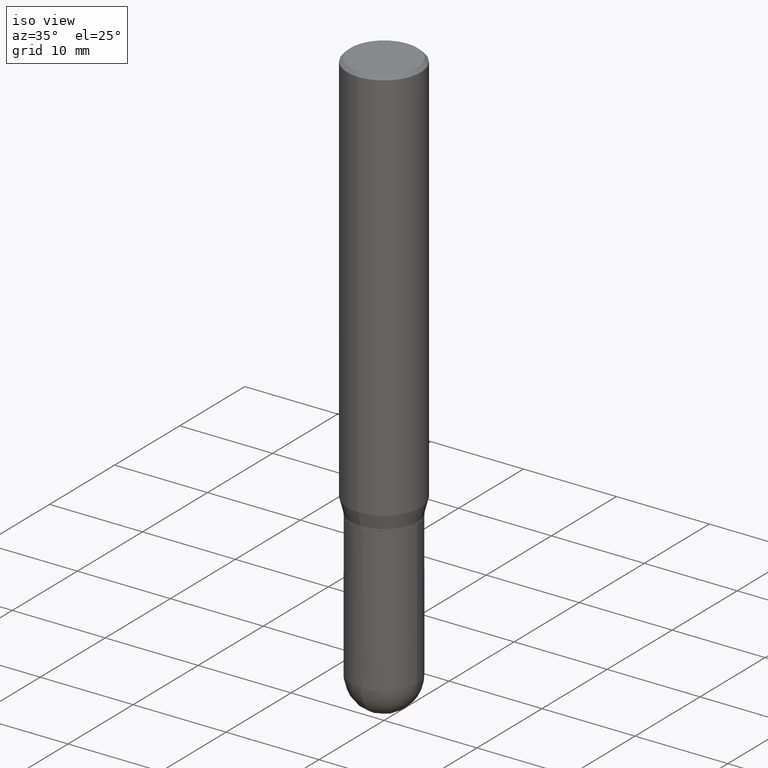
[diagram: clean part render]
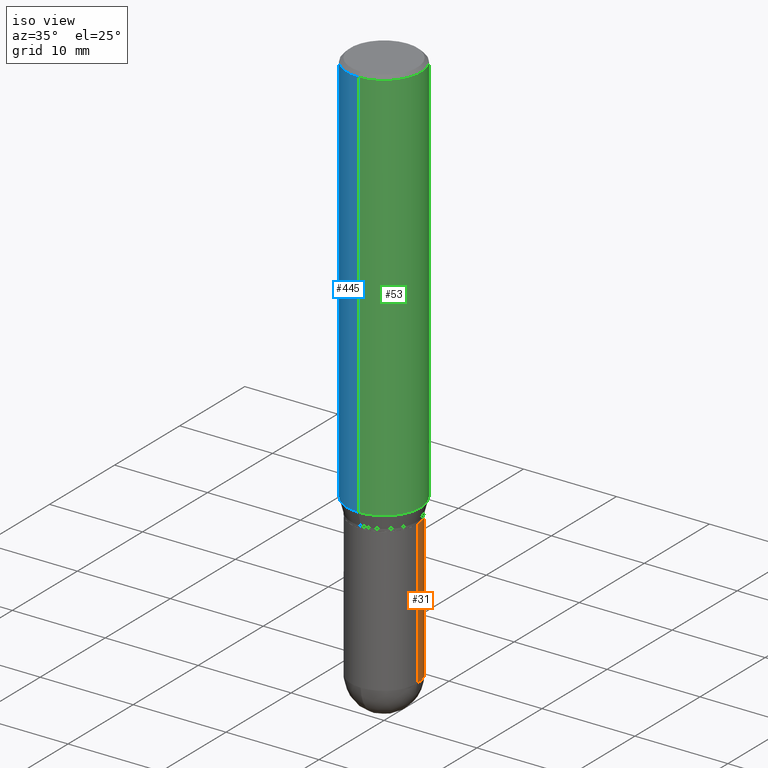
[diagram: same view with three faces highlighted in distinct colors, each labeled with its STEP entity id]
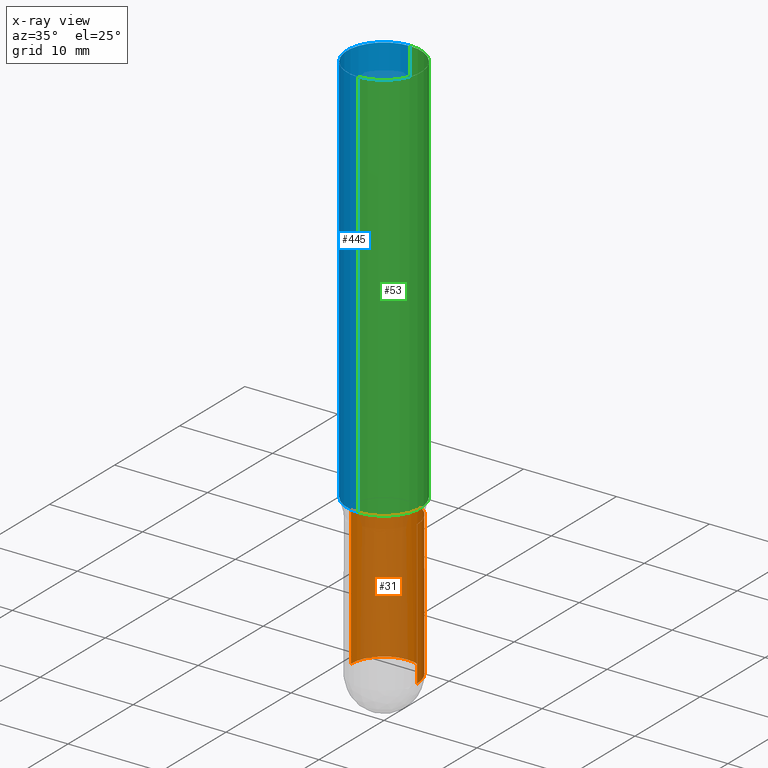
[diagram: x-ray of the same camera — body ghosted, the three highlighted faces saturated]
A machine part, iso view with three faces highlighted in distinct colors.
The next image is the same camera in x-ray (body ghosted, the three faces saturated) — at least one of them is partly hidden behind the body in this view.
Their STEP definitions:

[orange] entity #31 — the highlighted cylindrical surface (partial cylindrical patch) has radius 3.5712 mm, axis along (-0, 0, 1).
#3 = AXIS2_PLACEMENT_3D ( 'NONE', #416, #60, #380 ) ;
#5 = EDGE_CURVE ( 'NONE', #476, #144, #56, .T. ) ;
#30 = ORIENTED_EDGE ( 'NONE', *, *, #426, .T. ) ;
#31 = ADVANCED_FACE ( 'NONE', ( #459 ), #183, .T. ) ;
#45 = ORIENTED_EDGE ( 'NONE', *, *, #5, .T. ) ;
#56 = CIRCLE ( 'NONE', #351, 0.1406000000000000305 ) ;
#60 = DIRECTION ( 'NONE',  ( -2.445468806185136597E-29, 3.491481338843145583E-15, 1.000000000000000000 ) ) ;
#63 = VERTEX_POINT ( 'NONE', #70 ) ;
#70 = CARTESIAN_POINT ( 'NONE',  ( 0.1406000000000000028, -7.091896895458194566E-15, -1.750000000000000222 ) ) ;
#85 = EDGE_CURVE ( 'NONE', #208, #63, #298, .T. ) ;
#112 = DIRECTION ( 'NONE',  ( 1.000000000000000000, -6.982962677686270655E-15, 0.000000000000000000 ) ) ;
#142 = DIRECTION ( 'NONE',  ( 1.000000000000000000, -6.982962677686268288E-15, 4.876176775795936353E-29 ) ) ;
#144 = VERTEX_POINT ( 'NONE', #398 ) ;
#168 = CARTESIAN_POINT ( 'NONE',  ( 0.1406000000000000583, -8.155751259403701439E-15, -2.359399999999999942 ) ) ;
#170 = DIRECTION ( 'NONE',  ( 1.000000000000000000, -6.982962677686265133E-15, 0.000000000000000000 ) ) ;
#175 = LINE ( 'NONE', #460, #391 ) ;
#183 = CYLINDRICAL_SURFACE ( 'NONE', #421, 0.1406000000000000028 ) ;
#187 = ORIENTED_EDGE ( 'NONE', *, *, #358, .F. ) ;
#208 = VERTEX_POINT ( 'NONE', #168 ) ;
#220 = CARTESIAN_POINT ( 'NONE',  ( -0.1406000000000000028, -6.174923620442310269E-15, -1.750000000000000222 ) ) ;
#226 = CARTESIAN_POINT ( 'NONE',  ( 9.818045524827470871E-16, 0.1405999999999918426, -2.359400000000000386 ) ) ;
#244 = EDGE_LOOP ( 'NONE', ( #45, #501, #187, #394, #30 ) ) ;
#254 = CARTESIAN_POINT ( 'NONE',  ( 0.1406000000000000028, -9.818045524826893030E-16, 6.855904546769086274E-30 ) ) ;
#265 = CARTESIAN_POINT ( 'NONE',  ( 5.769839101313211634E-29, -8.237801070866517629E-15, -2.359399999999999942 ) ) ;
#281 = EDGE_CURVE ( 'NONE', #144, #342, #175, .T. ) ;
#298 = LINE ( 'NONE', #254, #377 ) ;
#304 = CIRCLE ( 'NONE', #362, 0.1406000000000000028 ) ;
#310 = DIRECTION ( 'NONE',  ( -2.445468806185136597E-29, 3.491481338843145583E-15, 1.000000000000000000 ) ) ;
#311 = DIRECTION ( 'NONE',  ( -2.445468806185136877E-29, 3.491481338843145188E-15, 1.000000000000000000 ) ) ;
#342 = VERTEX_POINT ( 'NONE', #220 ) ;
#351 = AXIS2_PLACEMENT_3D ( 'NONE', #265, #310, #112 ) ;
#358 = EDGE_CURVE ( 'NONE', #63, #342, #304, .T. ) ;
#362 = AXIS2_PLACEMENT_3D ( 'NONE', #382, #454, #170 ) ;
#377 = VECTOR ( 'NONE', #411, 39.37007874015748143 ) ;
#380 = DIRECTION ( 'NONE',  ( 1.000000000000000000, -6.982962677686270655E-15, 0.000000000000000000 ) ) ;
#382 = CARTESIAN_POINT ( 'NONE',  ( 4.279570410823989044E-29, -6.110092342975505460E-15, -1.750000000000000222 ) ) ;
#388 = DIRECTION ( 'NONE',  ( -2.445468806185136597E-29, 3.491481338843145583E-15, 1.000000000000000000 ) ) ;
#389 = CARTESIAN_POINT ( 'NONE',  ( 0.000000000000000000, 0.000000000000000000, 0.000000000000000000 ) ) ;
#391 = VECTOR ( 'NONE', #311, 39.37007874015748143 ) ;
#394 = ORIENTED_EDGE ( 'NONE', *, *, #85, .F. ) ;
#398 = CARTESIAN_POINT ( 'NONE',  ( -0.1406000000000000583, -6.174923620442310269E-15, -2.359399999999999942 ) ) ;
#411 = DIRECTION ( 'NONE',  ( -2.445468806185136877E-29, 3.491481338843145188E-15, 1.000000000000000000 ) ) ;
#416 = CARTESIAN_POINT ( 'NONE',  ( 5.769839101313211634E-29, -8.237801070866517629E-15, -2.359399999999999942 ) ) ;
#421 = AXIS2_PLACEMENT_3D ( 'NONE', #389, #388, #142 ) ;
#426 = EDGE_CURVE ( 'NONE', #208, #476, #451, .T. ) ;
#451 = CIRCLE ( 'NONE', #3, 0.1406000000000000305 ) ;
#454 = DIRECTION ( 'NONE',  ( -2.445468806185136597E-29, 3.491481338843145583E-15, 1.000000000000000000 ) ) ;
#459 = FACE_OUTER_BOUND ( 'NONE', #244, .T. ) ;
#460 = CARTESIAN_POINT ( 'NONE',  ( -0.1406000000000000028, 9.990230864787008809E-16, -6.916022736898399140E-30 ) ) ;
#476 = VERTEX_POINT ( 'NONE', #226 ) ;
#501 = ORIENTED_EDGE ( 'NONE', *, *, #281, .T. ) ;

[blue] entity #445 — the highlighted cylindrical surface (partial cylindrical patch) has radius 3.9688 mm, axis along (-0, 0, 1).
#23 = DIRECTION ( 'NONE',  ( -2.445561747179421972E-29, 3.491348242049456041E-15, 1.000000000000000000 ) ) ;
#44 = LINE ( 'NONE', #178, #415 ) ;
#57 = AXIS2_PLACEMENT_3D ( 'NONE', #106, #505, #510 ) ;
#58 = EDGE_LOOP ( 'NONE', ( #100, #308, #376, #104 ) ) ;
#69 = DIRECTION ( 'NONE',  ( -6.982962677686265133E-15, -1.000000000000000000, 3.491348242049456436E-15 ) ) ;
#75 = VERTEX_POINT ( 'NONE', #159 ) ;
#94 = CIRCLE ( 'NONE', #449, 0.1562500000000000000 ) ;
#100 = ORIENTED_EDGE ( 'NONE', *, *, #213, .F. ) ;
#104 = ORIENTED_EDGE ( 'NONE', *, *, #492, .F. ) ;
#106 = CARTESIAN_POINT ( 'NONE',  ( 3.668342620769144169E-31, -5.237022363074199050E-17, -0.01500000000000004455 ) ) ;
#113 = CARTESIAN_POINT ( 'NONE',  ( 0.000000000000000000, 0.000000000000000000, 0.000000000000000000 ) ) ;
#116 = VERTEX_POINT ( 'NONE', #210 ) ;
#159 = CARTESIAN_POINT ( 'NONE',  ( -1.091087918388478779E-15, -0.1562500000000000833, -0.01499999999999949811 ) ) ;
#166 = DIRECTION ( 'NONE',  ( -2.445561747179421692E-29, 3.491348242049455647E-15, 1.000000000000000000 ) ) ;
#169 = VECTOR ( 'NONE', #166, 39.37007874015748143 ) ;
#174 = DIRECTION ( 'NONE',  ( -6.982962677686265133E-15, -1.000000000000000000, 3.496765431890256920E-15 ) ) ;
#178 = CARTESIAN_POINT ( 'NONE',  ( -1.091087918388478976E-15, -0.1562500000000000000, 5.455231628202275927E-16 ) ) ;
#180 = CIRCLE ( 'NONE', #57, 0.1562500000000000000 ) ;
#184 = CARTESIAN_POINT ( 'NONE',  ( 1.110223024625197561E-15, 0.1562499999999941436, -1.681593404861547514 ) ) ;
#193 = FACE_OUTER_BOUND ( 'NONE', #58, .T. ) ;
#201 = CARTESIAN_POINT ( 'NONE',  ( 1.110223024625156343E-15, 0.1562500000000000000, -5.455231628202275927E-16 ) ) ;
#210 = CARTESIAN_POINT ( 'NONE',  ( -1.091087918388437956E-15, -0.1562500000000058842, -1.681593404861546404 ) ) ;
#213 = EDGE_CURVE ( 'NONE', #475, #409, #331, .T. ) ;
#215 = CARTESIAN_POINT ( 'NONE',  ( 4.112440505238597920E-29, -5.871028177905320877E-15, -1.681593404861546848 ) ) ;
#224 = AXIS2_PLACEMENT_3D ( 'NONE', #113, #361, #69 ) ;
#235 = CYLINDRICAL_SURFACE ( 'NONE', #224, 0.1562500000000000000 ) ;
#260 = CARTESIAN_POINT ( 'NONE',  ( 1.110223024625197561E-15, 0.1562499999999999445, -0.01500000000000059099 ) ) ;
#261 = EDGE_CURVE ( 'NONE', #116, #75, #44, .T. ) ;
#262 = DIRECTION ( 'NONE',  ( -2.445561747179421692E-29, 3.491348242049455647E-15, 1.000000000000000000 ) ) ;
#308 = ORIENTED_EDGE ( 'NONE', *, *, #384, .T. ) ;
#331 = LINE ( 'NONE', #201, #169 ) ;
#361 = DIRECTION ( 'NONE',  ( -2.445561747179421972E-29, 3.491348242049456041E-15, 1.000000000000000000 ) ) ;
#376 = ORIENTED_EDGE ( 'NONE', *, *, #261, .T. ) ;
#384 = EDGE_CURVE ( 'NONE', #475, #116, #94, .T. ) ;
#409 = VERTEX_POINT ( 'NONE', #260 ) ;
#415 = VECTOR ( 'NONE', #262, 39.37007874015748143 ) ;
#445 = ADVANCED_FACE ( 'NONE', ( #193 ), #235, .T. ) ;
#449 = AXIS2_PLACEMENT_3D ( 'NONE', #215, #23, #174 ) ;
#475 = VERTEX_POINT ( 'NONE', #184 ) ;
#492 = EDGE_CURVE ( 'NONE', #409, #75, #180, .T. ) ;
#505 = DIRECTION ( 'NONE',  ( -2.445561747179421972E-29, 3.491348242049456041E-15, 1.000000000000000000 ) ) ;
#510 = DIRECTION ( 'NONE',  ( -6.982962677686265133E-15, -1.000000000000000000, 3.496765431890256920E-15 ) ) ;

[green] entity #53 — the highlighted cylindrical surface (partial cylindrical patch) has radius 3.9688 mm, axis along (-0, 0, 1).
#9 = DIRECTION ( 'NONE',  ( -2.445561747179421972E-29, 3.491348242049456041E-15, 1.000000000000000000 ) ) ;
#28 = AXIS2_PLACEMENT_3D ( 'NONE', #489, #9, #326 ) ;
#44 = LINE ( 'NONE', #178, #415 ) ;
#53 = ADVANCED_FACE ( 'NONE', ( #420 ), #102, .T. ) ;
#71 = ORIENTED_EDGE ( 'NONE', *, *, #221, .T. ) ;
#75 = VERTEX_POINT ( 'NONE', #159 ) ;
#90 = CARTESIAN_POINT ( 'NONE',  ( 3.668342620769144169E-31, -5.237022363074199050E-17, -0.01500000000000004455 ) ) ;
#102 = CYLINDRICAL_SURFACE ( 'NONE', #490, 0.1562500000000000000 ) ;
#116 = VERTEX_POINT ( 'NONE', #210 ) ;
#123 = EDGE_CURVE ( 'NONE', #75, #409, #195, .T. ) ;
#126 = ORIENTED_EDGE ( 'NONE', *, *, #123, .F. ) ;
#151 = ORIENTED_EDGE ( 'NONE', *, *, #213, .T. ) ;
#159 = CARTESIAN_POINT ( 'NONE',  ( -1.091087918388478779E-15, -0.1562500000000000833, -0.01499999999999949811 ) ) ;
#166 = DIRECTION ( 'NONE',  ( -2.445561747179421692E-29, 3.491348242049455647E-15, 1.000000000000000000 ) ) ;
#167 = ORIENTED_EDGE ( 'NONE', *, *, #261, .F. ) ;
#169 = VECTOR ( 'NONE', #166, 39.37007874015748143 ) ;
#178 = CARTESIAN_POINT ( 'NONE',  ( -1.091087918388478976E-15, -0.1562500000000000000, 5.455231628202275927E-16 ) ) ;
#184 = CARTESIAN_POINT ( 'NONE',  ( 1.110223024625197561E-15, 0.1562499999999941436, -1.681593404861547514 ) ) ;
#195 = CIRCLE ( 'NONE', #371, 0.1562500000000000000 ) ;
#201 = CARTESIAN_POINT ( 'NONE',  ( 1.110223024625156343E-15, 0.1562500000000000000, -5.455231628202275927E-16 ) ) ;
#210 = CARTESIAN_POINT ( 'NONE',  ( -1.091087918388437956E-15, -0.1562500000000058842, -1.681593404861546404 ) ) ;
#213 = EDGE_CURVE ( 'NONE', #475, #409, #331, .T. ) ;
#221 = EDGE_CURVE ( 'NONE', #116, #475, #465, .T. ) ;
#257 = EDGE_LOOP ( 'NONE', ( #71, #151, #126, #167 ) ) ;
#260 = CARTESIAN_POINT ( 'NONE',  ( 1.110223024625197561E-15, 0.1562499999999999445, -0.01500000000000059099 ) ) ;
#261 = EDGE_CURVE ( 'NONE', #116, #75, #44, .T. ) ;
#262 = DIRECTION ( 'NONE',  ( -2.445561747179421692E-29, 3.491348242049455647E-15, 1.000000000000000000 ) ) ;
#282 = CARTESIAN_POINT ( 'NONE',  ( 0.000000000000000000, 0.000000000000000000, 0.000000000000000000 ) ) ;
#326 = DIRECTION ( 'NONE',  ( -6.982962677686265133E-15, -1.000000000000000000, 3.496765431890256920E-15 ) ) ;
#331 = LINE ( 'NONE', #201, #169 ) ;
#347 = DIRECTION ( 'NONE',  ( -2.445561747179421972E-29, 3.491348242049456041E-15, 1.000000000000000000 ) ) ;
#371 = AXIS2_PLACEMENT_3D ( 'NONE', #90, #452, #372 ) ;
#372 = DIRECTION ( 'NONE',  ( -6.982962677686265133E-15, -1.000000000000000000, 3.496765431890256920E-15 ) ) ;
#409 = VERTEX_POINT ( 'NONE', #260 ) ;
#415 = VECTOR ( 'NONE', #262, 39.37007874015748143 ) ;
#420 = FACE_OUTER_BOUND ( 'NONE', #257, .T. ) ;
#452 = DIRECTION ( 'NONE',  ( -2.445561747179421972E-29, 3.491348242049456041E-15, 1.000000000000000000 ) ) ;
#465 = CIRCLE ( 'NONE', #28, 0.1562500000000000000 ) ;
#475 = VERTEX_POINT ( 'NONE', #184 ) ;
#489 = CARTESIAN_POINT ( 'NONE',  ( 4.112440505238597920E-29, -5.871028177905320877E-15, -1.681593404861546848 ) ) ;
#490 = AXIS2_PLACEMENT_3D ( 'NONE', #282, #347, #503 ) ;
#503 = DIRECTION ( 'NONE',  ( -6.982962677686265133E-15, -1.000000000000000000, 3.491348242049456436E-15 ) ) ;